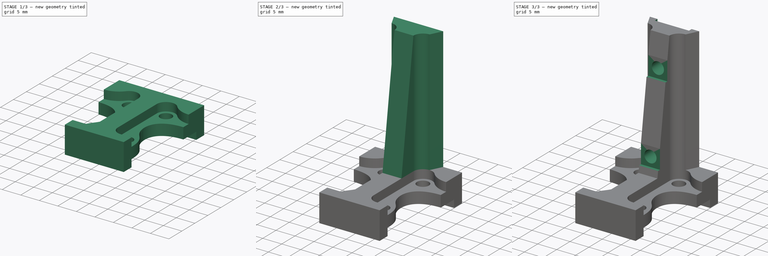
[diagram: build sequence overview — one tinted view per stage of 3, left to right]
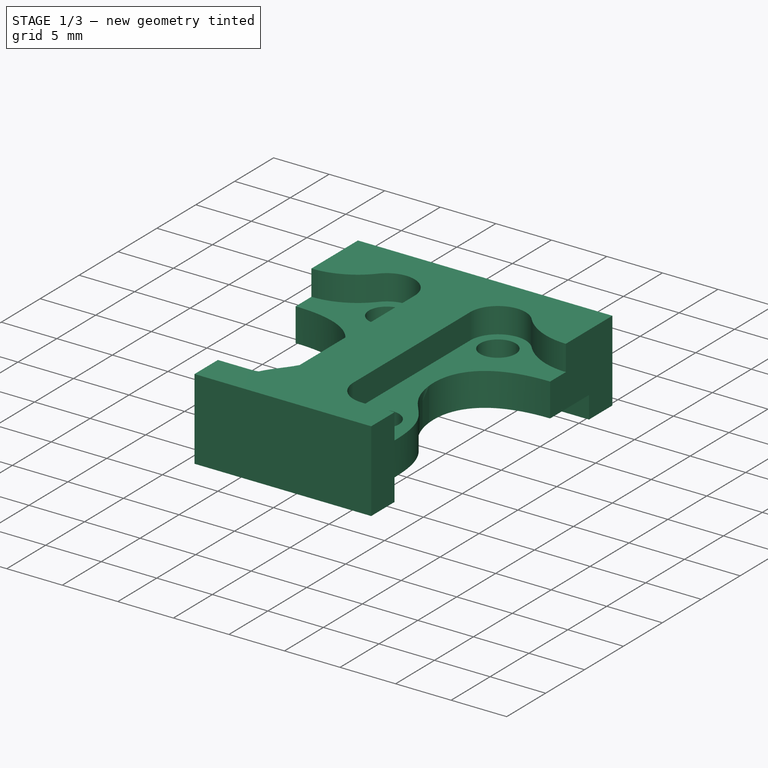
[diagram: stage 1 of 3 — iso view after this stage's code; geometry added in this stage tinted green]
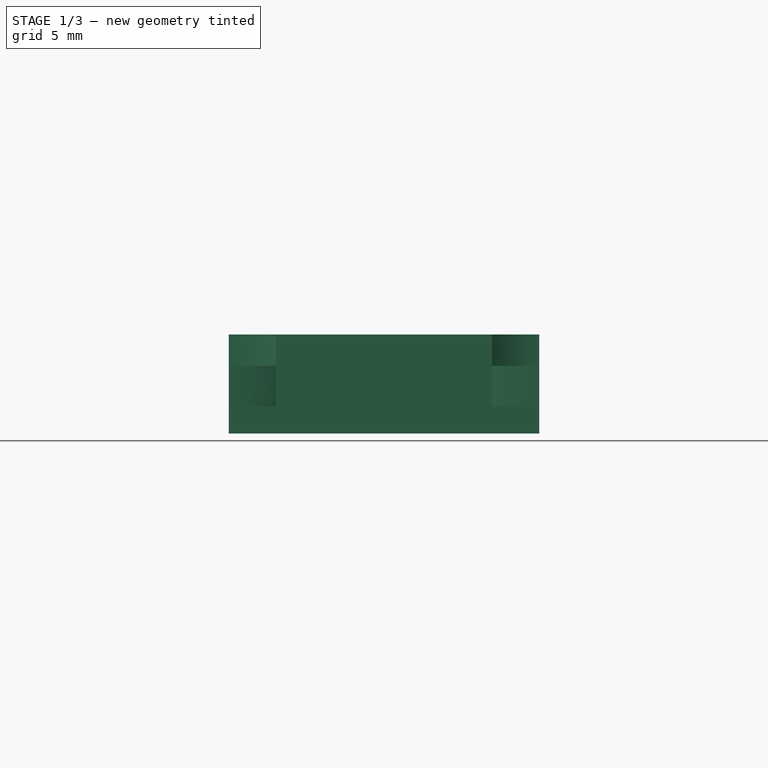
[diagram: stage 1 of 3 — front view after this stage's code; geometry added in this stage tinted green]
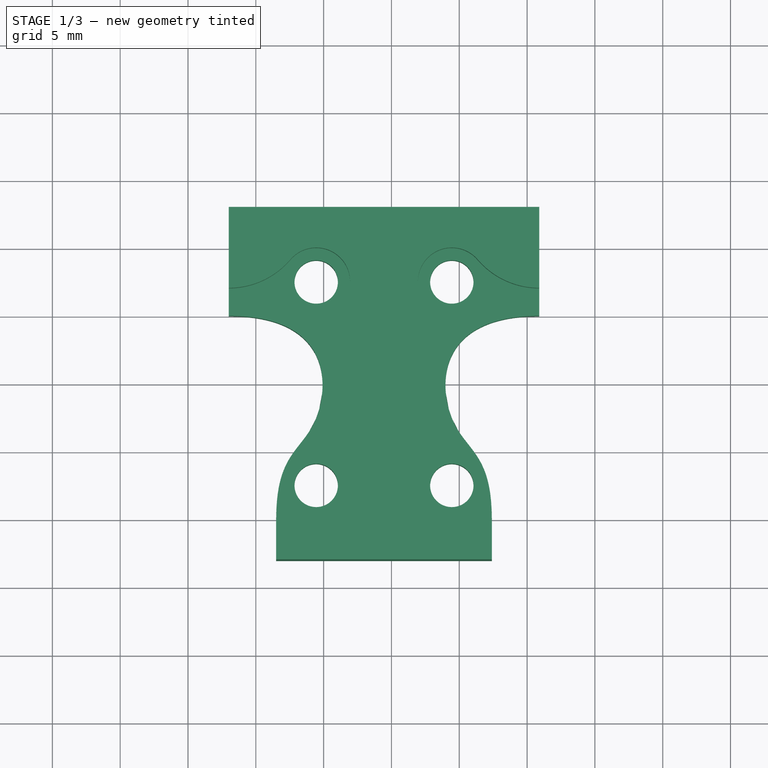
[diagram: stage 1 of 3 — top view after this stage's code; geometry added in this stage tinted green]
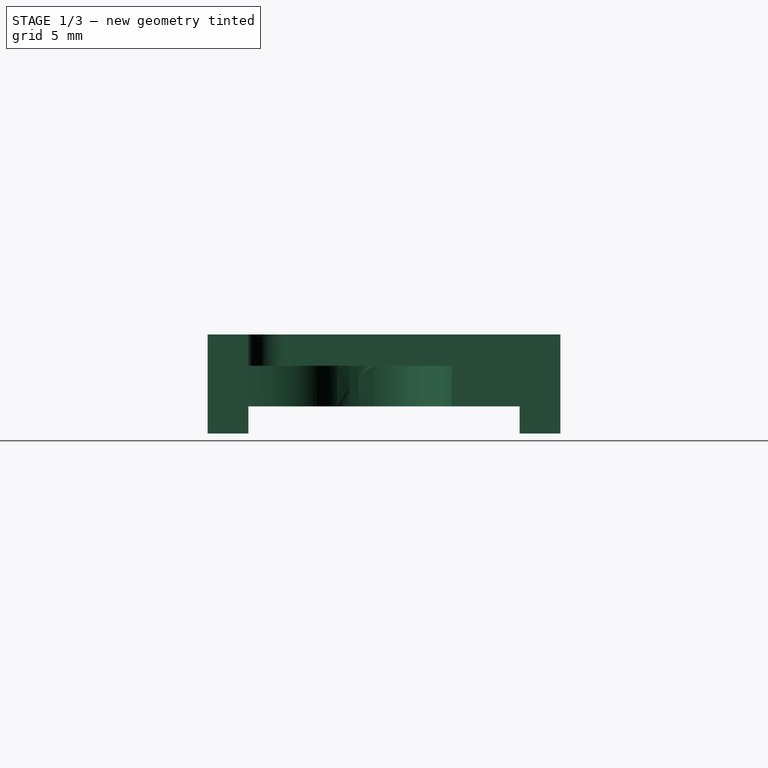
[diagram: stage 1 of 3 — right view after this stage's code; geometry added in this stage tinted green]
FCSTD DOCUMENT  (FreeCAD 0.21R33668 +26 (Git))
Label: XZ_Connector
License: All rights reserved
LicenseURL: http://en.wikipedia.org/wiki/All_rights_reserved
objects: Sketcher::SketchObject×8, PartDesign::Pocket×5, PartDesign::SubShapeBinder×3, PartDesign::Pad×3, PartDesign::ShapeBinder×1, PartDesign::Body×1
note: 29 computed .brp shape members not serialized (recipe doc carries the construction recipe); baked Part::Feature solids carry a one-line shape summary decoded from their .brp
EXTERNAL_REF file=MG/mgn9c_slide.FCStd obj=Body001
EXTERNAL_REF file=MG/Datasheet.FCStd obj=Spreadsheet
EXTERNAL_REF file=MG/mgn9c_13.FCStd obj=Body
EXTERNAL_REF file=OmniballConnector/OmniballConnector_7945.FCStd obj=Body

FEATURE [PartDesign::SubShapeBinder] Binder  label="Slide"
  BindCopyOnChange = 0
  BindMode = 0
  ClaimChildren = false
  Fuse = false
  MakeFace = true
  OffsetFill = false
  OffsetIntersection = false
  OffsetJoinType = 0
  OffsetOpenResult = false
  PartialLoad = false
  Relative = true
  Support = -> [<external MG/mgn9c_slide.FCStd>#Body001]
  _Version = 2
FEATURE [PartDesign::ShapeBinder] ReferenceBinder
  Support = -> [Binder]
  TraceSupport = false
FEATURE [Sketcher::SketchObject] Sketch
  ExternalGeometry = -> [ReferenceBinder]
  FullyConstrained = true
  MapMode = 5
  Placement = pos=(0,0,8) rot=(0,0,1;0rad)
  Support = -> [ReferenceBinder]
  expr: .Constraints.ScrewRAd = 3.2
  expr: Constraints[23] = .Constraints.ScrewRAd
  expr: Constraints[49] = .Constraints.Overhang
  expr: Constraints[79] = .Constraints.ScrewRAd
  expr: Constraints[80] = .Constraints.ScrewRAd
  sketch-geometry (37):
    g0: LineSegment StartX=3 StartY=23 StartZ=0 EndX=25.9 EndY=23 EndZ=0
    g1: LineSegment StartX=25.9 StartY=23 StartZ=0 EndX=25.9 EndY=15 EndZ=0
    g2: LineSegment StartX=25.9 StartY=15 StartZ=0 EndX=3 EndY=15 EndZ=0
    g3: LineSegment StartX=3 StartY=15 StartZ=0 EndX=3 EndY=23 EndZ=0
    g4: GeomPoint X=14.45 Y=15 Z=0
    g5: GeomPoint X=5 Y=15 Z=0
    g6: GeomPoint X=23.9 Y=15 Z=0
    g7: GeomPoint X=9.45 Y=20 Z=0
    g8: GeomPoint X=9.45 Y=15 Z=0
    g9: LineSegment StartX=9.45 StartY=20 StartZ=0 EndX=9.45 EndY=15 EndZ=0
    g10: Circle CenterX=9.45 CenterY=17.5 CenterZ=0 NormalX=0 NormalY=0 NormalZ=1 AngleXU=0 Radius=1.6
    g11: Circle CenterX=19.45 CenterY=17.5 CenterZ=0 NormalX=0 NormalY=0 NormalZ=1 AngleXU=0 Radius=1.6
    g12-g16: Circle x5 (B-spline internal-alignment scaffolding for g17; pole/knot coordinates omitted)
    g17: BSplineCurve PolesCount=5 KnotsCount=3 Degree=3 IsPeriodic=0
    g18: GeomPoint X=3 Y=15 Z=0
    g19: GeomPoint X=9.4625 Y=7.5 Z=0
    g20: GeomPoint X=6.5 Y=0 Z=0
    g21: LineSegment StartX=22.4 StartY=0 StartZ=0 EndX=22.4 EndY=-3 EndZ=0
    g22: LineSegment StartX=22.4 StartY=-3 StartZ=0 EndX=6.5 EndY=-3 EndZ=0
    g23: LineSegment StartX=6.5 StartY=-3 StartZ=0 EndX=6.5 EndY=0 EndZ=0
    g24: GeomPoint X=14.45 Y=0 Z=0
    g25-g29: Circle x5 (B-spline internal-alignment scaffolding for g30; pole/knot coordinates omitted)
    g30: BSplineCurve PolesCount=5 KnotsCount=3 Degree=3 IsPeriodic=0
    g31: GeomPoint X=25.9 Y=15 Z=0
    g32: GeomPoint X=19.4375 Y=7.5 Z=0
    g33: GeomPoint X=22.4 Y=0 Z=0
    g34: LineSegment StartX=14.45 StartY=15 StartZ=0 EndX=14.45 EndY=0 EndZ=0
    g35: Circle CenterX=19.45 CenterY=2.5 CenterZ=0 NormalX=0 NormalY=0 NormalZ=1 AngleXU=0 Radius=1.6
    g36: Circle CenterX=9.45 CenterY=2.5 CenterZ=0 NormalX=0 NormalY=0 NormalZ=1 AngleXU=0 Radius=1.6
  constraints (67):
    c: Coincident(g0,g1)
    c: Coincident(g1,g2)
    c: Coincident(g2,g3)
    c: Coincident(g3,g0)
    c: Horizontal(g0)
    c: Horizontal(g2)
    c: Vertical(g1)
    c: Vertical(g3)
    c: DistanceX(g2,g-8) = 2
    c: Symmetric(g1,g2,g4)
    c: PointOnObject(g5,g-8)
    c: PointOnObject(g5,g2)
    c: PointOnObject(g6,g-9)
    c: Symmetric(g6,g5,g4)
    c: DistanceY(g-8,g0) = 3
    c: PointOnObject(g7,g-7)
    c: PointOnObject(g8,g2)
    c: Coincident(g9,g7)
    c: Coincident(g9,g8)
    c: Vertical(g9)
    c: Symmetric(g8,g7,g-3)
    c: Coincident(g10,g-3)
    c: Coincident(g11,g-4)
    c: Diameter(g11) = 3.2
    c: Diameter(g10) = 3.2  'ScrewRAd'
    c: Weight(g12) = 1
    c: Coincident(g17,g2)
    c: Equal(g12, g13-g16) x4
    c: PointOnObject(g17,g-1)
    c: InternalAlignment(g12-g16 -> g17) x5
    c: InternalAlignment(g18,g17)
    c: InternalAlignment(g19,g17)
    c: InternalAlignment(g20,g17)
    c: DistanceX(g15,g17) = 0
    c: PointOnObject(g13,g2)
    c: DistanceY(g14,g15) = 0
    c: Coincident(g21,g22)
    c: Coincident(g22,g23)
    c: Horizontal(g22)
    c: Vertical(g21)
    c: Vertical(g23)
    c: DistanceY(g-9,g0) = 3  'Overhang'
    c: DistanceY(g21,g21) = 3
    c: DistanceX(g13,g4) = 4
    c: DistanceX(g13,g14) = 0
    c: DistanceY(g17,g15) = 5
    c: Coincident(g16,g23)
    c: Symmetric(g-8,g-9,g24)
    c: Weight(g25) = 1
    c: Coincident(g30,g1)
    c: Equal(g25, g26-g29) x4
    c: Coincident(g30,g21)
    c: InternalAlignment(g25-g29 -> g30) x5
    c: InternalAlignment(g31,g30)
    c: InternalAlignment(g32,g30)
    c: InternalAlignment(g33,g30)
    c: Coincident(g34,g4)
    c: Coincident(g34,g24)
    c: Symmetric(g13,g26,g34)
    c: Symmetric(g14,g27,g34)
    c: Symmetric(g15,g28,g34)
    c: Symmetric(g21,g17,g34)
    c: DistanceX(g21,g-9) = 1.5
    c: Coincident(g35,g-5)
    c: Coincident(g36,g-6)
    c: Diameter(g36) = 3.2
    c: Diameter(g35) = 3.2
FEATURE [PartDesign::Pad] Pad
  Direction = (0,0,1)
  Length = 5.3
  Length2 = 10
  Profile = -> Sketch
  ReferenceAxis = -> Sketch [N_Axis]
  Type = 0
FEATURE [Sketcher::SketchObject] Sketch001
  ExternalGeometry = -> [Pad,ReferenceBinder]
  FullyConstrained = true
  MapMode = 5
  Placement = pos=(0,0,8) rot=(0,0,1;0rad)
  Support = -> [ReferenceBinder]
  sketch-geometry (8):
    g0: LineSegment StartX=3 StartY=23 StartZ=0 EndX=25.9 EndY=23 EndZ=0
    g1: LineSegment StartX=25.9 StartY=23 StartZ=0 EndX=25.9 EndY=20 EndZ=0
    g2: LineSegment StartX=25.9 StartY=20 StartZ=0 EndX=3 EndY=20 EndZ=0
    g3: LineSegment StartX=3 StartY=20 StartZ=0 EndX=3 EndY=23 EndZ=0
    g4: LineSegment StartX=22.4 StartY=0 StartZ=0 EndX=6.5 EndY=0 EndZ=0
    g5: LineSegment StartX=6.5 StartY=0 StartZ=0 EndX=6.5 EndY=-3 EndZ=0
    g6: LineSegment StartX=6.5 StartY=-3 StartZ=0 EndX=22.4 EndY=-3 EndZ=0
    g7: LineSegment StartX=22.4 StartY=-3 StartZ=0 EndX=22.4 EndY=0 EndZ=0
  constraints (20):
    c: Coincident(g0,g1)
    c: Coincident(g1,g2)
    c: Coincident(g2,g3)
    c: Coincident(g3,g0)
    c: Horizontal(g2)
    c: Vertical(g1)
    c: Vertical(g3)
    c: PointOnObject(g-4,g2)
    c: Coincident(g0,g-3)
    c: Coincident(g0,g-3)
    c: Coincident(g4,g5)
    c: Coincident(g5,g6)
    c: Coincident(g6,g7)
    c: Coincident(g7,g4)
    c: Horizontal(g4)
    c: Horizontal(g6)
    c: Vertical(g5)
    c: Vertical(g7)
    c: Coincident(g4,g-6)
    c: Coincident(g5,g-5)
FEATURE [PartDesign::Pad] Pad001
  BaseFeature = -> Pad
  Direction = (0,0,1)
  Length = 2
  Length2 = 10
  Profile = -> Sketch001
  ReferenceAxis = -> Sketch001 [N_Axis]
  Reversed = true
  Type = 0
  expr: Length = 2
FEATURE [Sketcher::SketchObject] Sketch002
  ExternalGeometry = -> [Pad001]
  FullyConstrained = true
  MapMode = 5
  Placement = pos=(0,0,13.3) rot=(0,0,1;0rad)
  Support = -> [Pad001]
  sketch-geometry (19):
    g0: Circle CenterX=19.45 CenterY=17.5 CenterZ=0 NormalX=0 NormalY=0 NormalZ=1 AngleXU=0 Radius=2.5
    g1: Circle CenterX=9.45 CenterY=17.5 CenterZ=0 NormalX=0 NormalY=0 NormalZ=1 AngleXU=0 Radius=2.5
    g2: Circle CenterX=9.45 CenterY=2.5 CenterZ=0 NormalX=0 NormalY=0 NormalZ=1 AngleXU=0 Radius=2.5
    g3: Circle CenterX=19.45 CenterY=2.5 CenterZ=0 NormalX=0 NormalY=0 NormalZ=1 AngleXU=0 Radius=2.5
    g4: ArcOfCircle CenterX=9.45 CenterY=2.5 CenterZ=0 NormalX=0 NormalY=0 NormalZ=1 AngleXU=0 Radius=2.5 StartAngle=4.71239 EndAngle=6.28318
    g5: ArcOfCircle CenterX=19.45 CenterY=2.5 CenterZ=0 NormalX=0 NormalY=0 NormalZ=1 AngleXU=0 Radius=2.5 StartAngle=3.1416 EndAngle=4.71238
    g6: ArcOfCircle CenterX=19.45 CenterY=17.5 CenterZ=0 NormalX=0 NormalY=0 NormalZ=1 AngleXU=0 Radius=2.5 StartAngle=0.706067 EndAngle=3.14159
    g7: ArcOfCircle CenterX=9.45 CenterY=17.5 CenterZ=0 NormalX=0 NormalY=0 NormalZ=1 AngleXU=0 Radius=2.5 StartAngle=6.28319 EndAngle=8.71871
    g8: LineSegment StartX=14.45 StartY=23 StartZ=0 EndX=14.45 EndY=0 EndZ=0
    g9: LineSegment StartX=11.95 StartY=17.5 StartZ=0 EndX=11.95 EndY=2.49999 EndZ=0
    g10: LineSegment StartX=16.95 StartY=17.5 StartZ=0 EndX=16.95 EndY=2.49999 EndZ=0
    g11: ArcOfCircle CenterX=25.9 CenterY=23 CenterZ=0 NormalX=0 NormalY=0 NormalZ=1 AngleXU=0 Radius=5.97659 StartAngle=3.84766 EndAngle=4.71239
    g12: ArcOfCircle CenterX=3 CenterY=23 CenterZ=0 NormalX=0 NormalY=0 NormalZ=1 AngleXU=0 Radius=5.97659 StartAngle=4.71239 EndAngle=5.57712
    g13: LineSegment StartX=9.45 StartY=5.51e-14 StartZ=0 EndX=6.5 EndY=5.51e-14 EndZ=0
    g14: LineSegment StartX=19.45 StartY=2.91389e-11 StartZ=0 EndX=22.4 EndY=2.91389e-11 EndZ=0
    g15: LineSegment StartX=22.4 StartY=2.91389e-11 StartZ=0 EndX=25.9 EndY=15 EndZ=0
    g16: LineSegment StartX=25.9 StartY=15 StartZ=0 EndX=25.9 EndY=17.0234 EndZ=0
    g17: LineSegment StartX=3 StartY=17.0234 StartZ=0 EndX=3 EndY=15 EndZ=0
    g18: LineSegment StartX=3 StartY=15 StartZ=0 EndX=6.5 EndY=5.51e-14 EndZ=0
  constraints (47):
    c: Coincident(g0,g-3)
    c: Coincident(g1,g-4)
    c: Coincident(g2,g-5)
    c: Coincident(g3,g-6)
    c: Coincident(g4,g2)
    c: PointOnObject(g4,g2)
    c: Coincident(g5,g3)
    c: Coincident(g6,g0)
    c: Coincident(g7,g1)
    c: PointOnObject(g8,g-1)
    c: Symmetric(g-7,g-7,g8)
    c: Symmetric(g7,g6,g8)
    c: Symmetric(g7,g6,g8)
    c: Symmetric(g5,g4,g8)
    c: Coincident(g9,g7)
    c: Coincident(g9,g4)
    c: Coincident(g10,g6)
    c: Coincident(g10,g5)
    c: PointOnObject(g11,g-8)
    c: Coincident(g11,g6)
    c: Tangent(g11,g0)
    c: Coincident(g12,g7)
    c: Symmetric(g12,g11,g8)
    c: PointOnObject(g6,g0)
    c: Coincident(g11,g-8)
    c: Tangent(g10,g0)
    c: Tangent(g3,g10)
    c: Coincident(g13,g4)
    c: Horizontal(g13)
    c: Coincident(g14,g5)
    c: Horizontal(g14)
    c: Tangent(g14,g3)
    c: Symmetric(g13,g14,g8)
    c: PointOnObject(g14,g-9)
    c: Coincident(g15,g14)
    c: Coincident(g15,g-8)
    c: Coincident(g16,g15)
    c: Coincident(g16,g11)
    c: Coincident(g17,g12)
    c: Coincident(g18,g17)
    c: Coincident(g18,g13)
    c: Symmetric(g17,g15,g8)
    c: Tangent(g12,g1)
    c: Vertical(g10)
    c: Diameter(g0) = 5  'ScrewHead'
    c: Tangent(g13,g2)
    c: Perpendicular(g12,g17)
FEATURE [PartDesign::Pocket] Pocket
  BaseFeature = -> Pad001
  Direction = (0,0,-1)
  Length = 2.3
  Length2 = 5
  Profile = -> Sketch002
  ReferenceAxis = -> Sketch002 [N_Axis]
  Type = 0
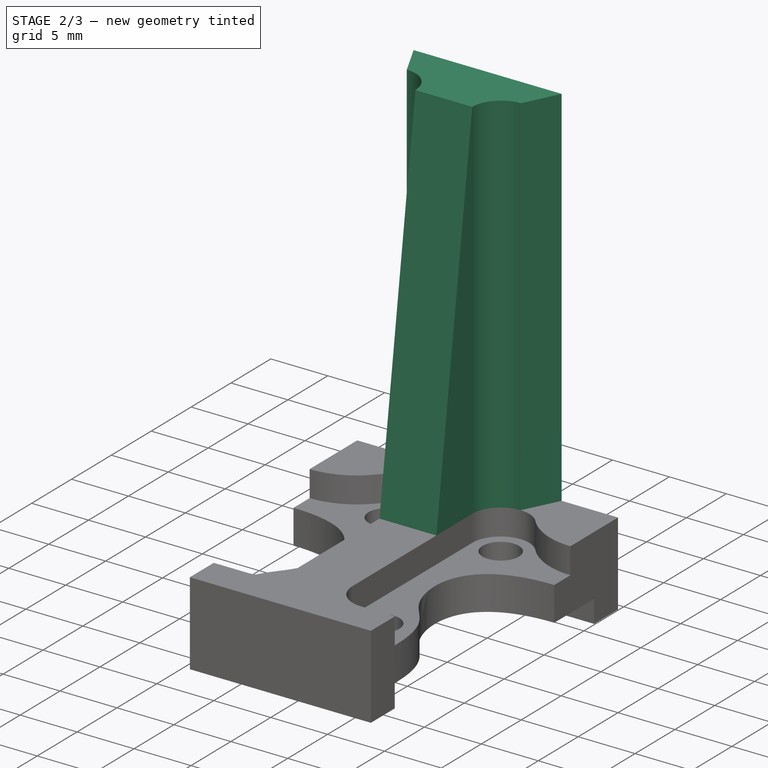
[diagram: stage 2 of 3 — iso view after this stage's code; geometry added in this stage tinted green]
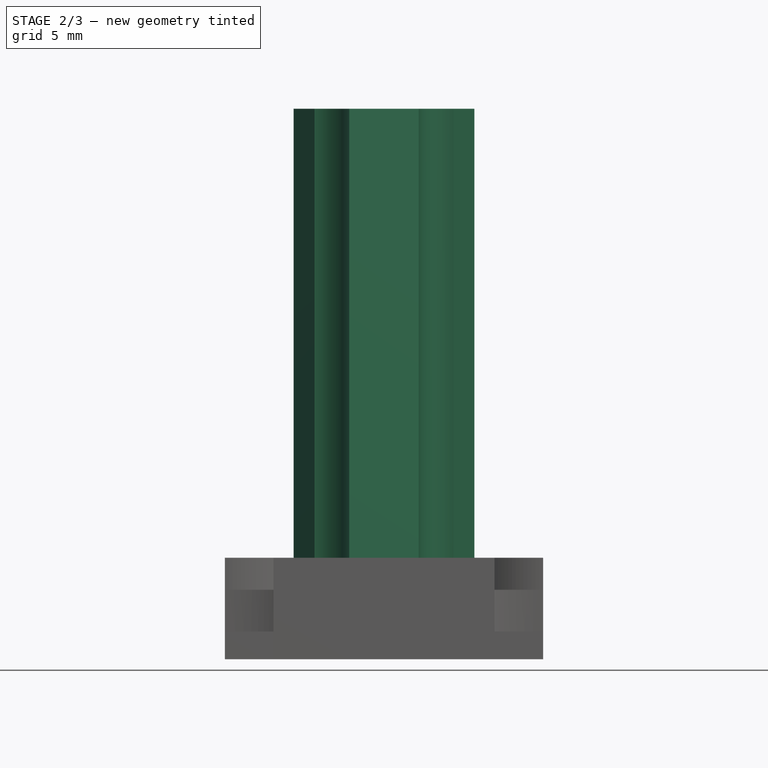
[diagram: stage 2 of 3 — front view after this stage's code; geometry added in this stage tinted green]
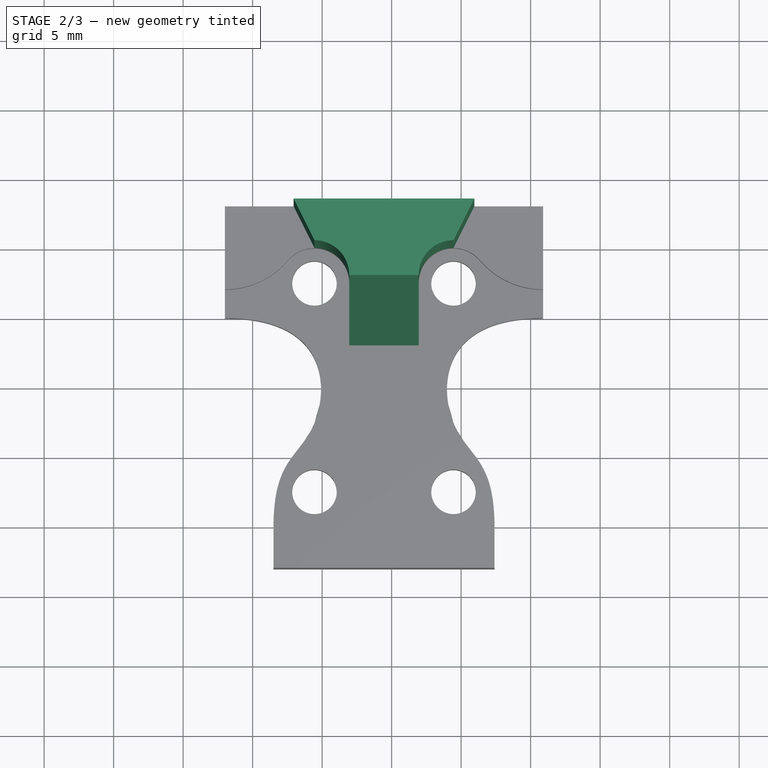
[diagram: stage 2 of 3 — top view after this stage's code; geometry added in this stage tinted green]
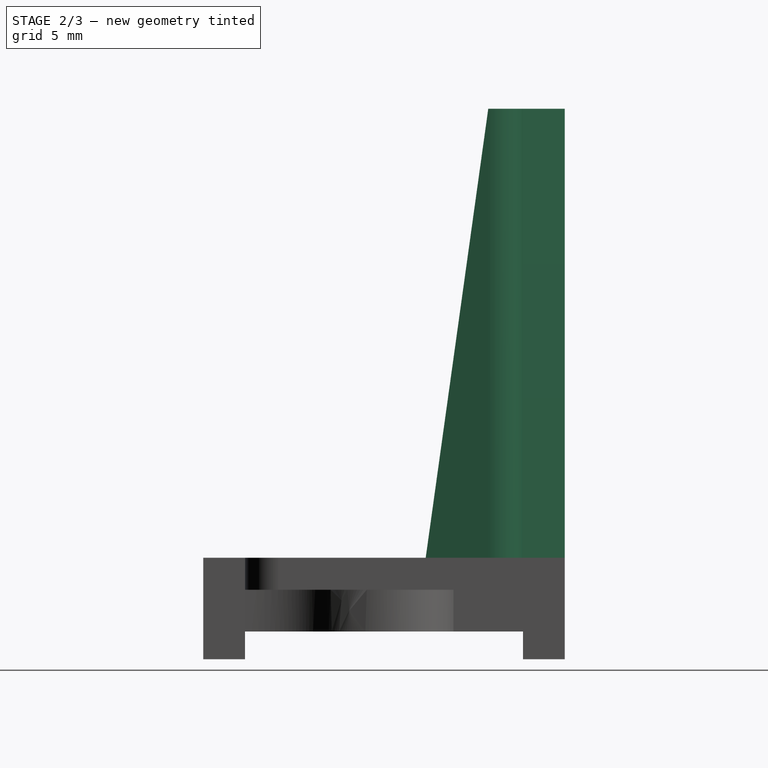
[diagram: stage 2 of 3 — right view after this stage's code; geometry added in this stage tinted green]
FEATURE [Sketcher::SketchObject] Sketch005
  ExternalGeometry = -> [Pocket]
  FullyConstrained = true
  MapMode = 5
  Placement = pos=(0,0,13.3) rot=(0,0,1;0rad)
  Support = -> [Pocket]
  expr: Constraints[22] = <<Datasheet>>#<<mgn9c>>.Dim_Wr + 4
  sketch-geometry (11):
    g0: LineSegment StartX=7.95 StartY=23 StartZ=0 EndX=20.95 EndY=23 EndZ=0
    g1: LineSegment StartX=20.95 StartY=23 StartZ=0 EndX=19.45 EndY=20 EndZ=0
    g2: LineSegment StartX=19.45 StartY=20 StartZ=0 EndX=9.45 EndY=20 EndZ=0
    g3: LineSegment StartX=9.45 StartY=20 StartZ=0 EndX=7.95 EndY=23 EndZ=0
    g4: ArcOfCircle CenterX=9.45 CenterY=17.5 CenterZ=0 NormalX=0 NormalY=0 NormalZ=1 AngleXU=0 Radius=2.5 StartAngle=6.28319 EndAngle=7.85398
    g5: ArcOfCircle CenterX=19.45 CenterY=17.5 CenterZ=0 NormalX=0 NormalY=0 NormalZ=1 AngleXU=0 Radius=2.5 StartAngle=1.5708 EndAngle=3.14159
    g6: LineSegment StartX=11.95 StartY=17.5 StartZ=0 EndX=16.95 EndY=17.5 EndZ=0
    g7: LineSegment StartX=16.95 StartY=17.5 StartZ=0 EndX=16.95 EndY=13 EndZ=0
    g8: LineSegment StartX=16.95 StartY=13 StartZ=0 EndX=11.95 EndY=13 EndZ=0
    g9: LineSegment StartX=11.95 StartY=13 StartZ=0 EndX=11.95 EndY=17.5 EndZ=0
    g10: GeomPoint X=14.45 Y=23 Z=0
  constraints (27):
    c: Coincident(g0,g1)
    c: Coincident(g1,g2)
    c: Coincident(g3,g0)
    c: Horizontal(g0)
    c: Coincident(g5,g-5)
    c: Coincident(g5,g1)
    c: DistanceX(g-4,g-5) = 5
    c: Coincident(g5,g-5)
    c: Coincident(g4,g-4)
    c: Coincident(g4,g-4)
    c: Coincident(g2,g3)
    c: Coincident(g2,g4)
    c: Coincident(g6,g7)
    c: Coincident(g7,g8)
    c: Coincident(g8,g9)
    c: Coincident(g9,g6)
    c: Horizontal(g8)
    c: Vertical(g7)
    c: Vertical(g9)
    c: Coincident(g6,g4)
    c: Coincident(g5,g6)
    c: DistanceY(g7,g0) = 10
    c: DistanceX(g0,g0) = 13
    c: Horizontal(g2)
    c: Tangent(g5,g2)
    c: Symmetric(g-3,g-3,g10)
    c: Symmetric(g0,g0,g10)
FEATURE [PartDesign::Pad] Pad002
  BaseFeature = -> Pocket
  Direction = (0,0,1)
  Length = 32.3
  Length2 = 10
  Profile = -> Sketch005
  ReferenceAxis = -> Sketch005 [N_Axis]
  Type = 0
  expr: Length = <<Datasheet>>#<<mgn9c>>.Dim_E * 2 + <<Datasheet>>#<<mgn9c>>.Dim_P - (<<Datasheet>>#<<mgn9c>>.Dim_H - <<Datasheet>>#<<mgn9c>>.Dim_H1 - 5.3)
FEATURE [Sketcher::SketchObject] Sketch006
  ExternalGeometry = -> [Pad002]
  FullyConstrained = true
  MapMode = 5
  Placement = pos=(16.95,0,0) rot=(0.57735,0.57735,0.57735;2.0944rad)
  Support = -> [Pad002]
  sketch-geometry (3):
    g0: LineSegment StartX=17.5 StartY=45.6 StartZ=0 EndX=13 EndY=13.3 EndZ=0
    g1: LineSegment StartX=13 StartY=13.3 StartZ=0 EndX=13 EndY=45.6 EndZ=0
    g2: LineSegment StartX=13 StartY=45.6 StartZ=0 EndX=17.5 EndY=45.6 EndZ=0
  constraints (6):
    c: Coincident(g0,g-3)
    c: Coincident(g0,g-4)
    c: Coincident(g1,g0)
    c: Coincident(g1,g-4)
    c: Coincident(g2,g1)
    c: Coincident(g2,g0)
FEATURE [PartDesign::Pocket] Pocket001
  BaseFeature = -> Pad002
  Direction = (-1,0,0)
  Length = 10
  Length2 = 5
  Profile = -> Sketch006
  ReferenceAxis = -> Sketch006 [N_Axis]
  Type = 0
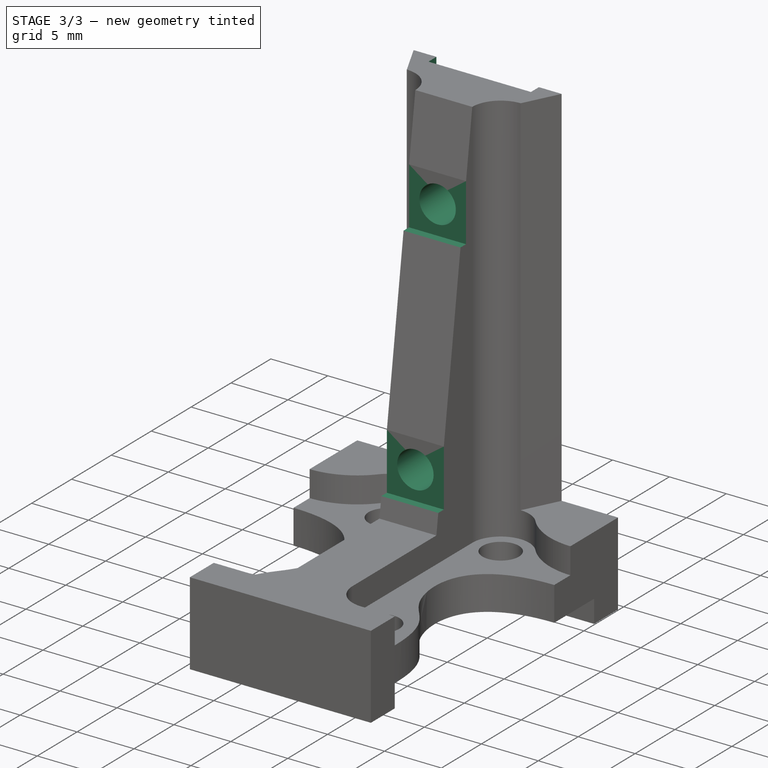
[diagram: stage 3 of 3 — iso view after this stage's code; geometry added in this stage tinted green]
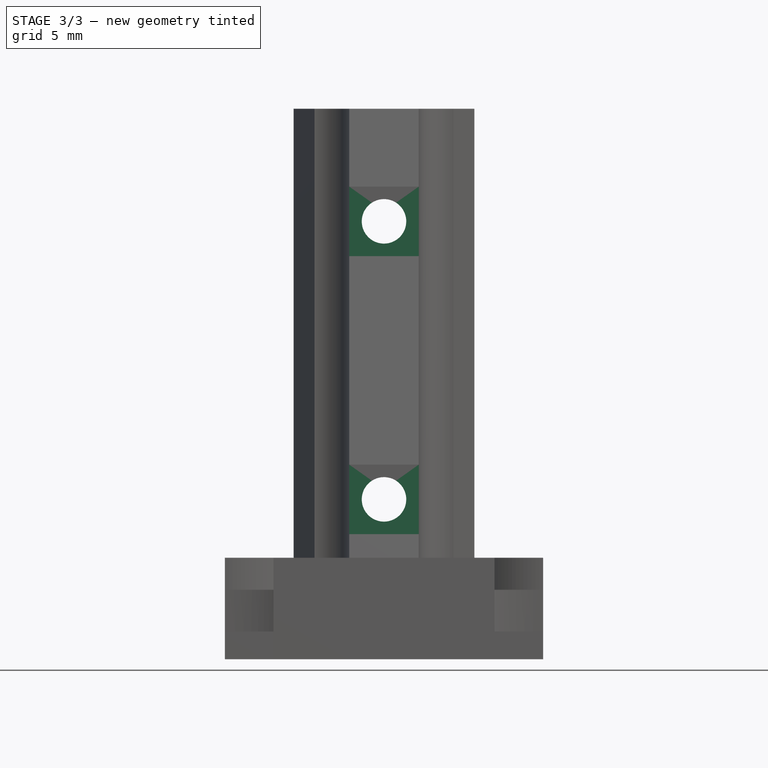
[diagram: stage 3 of 3 — front view after this stage's code; geometry added in this stage tinted green]
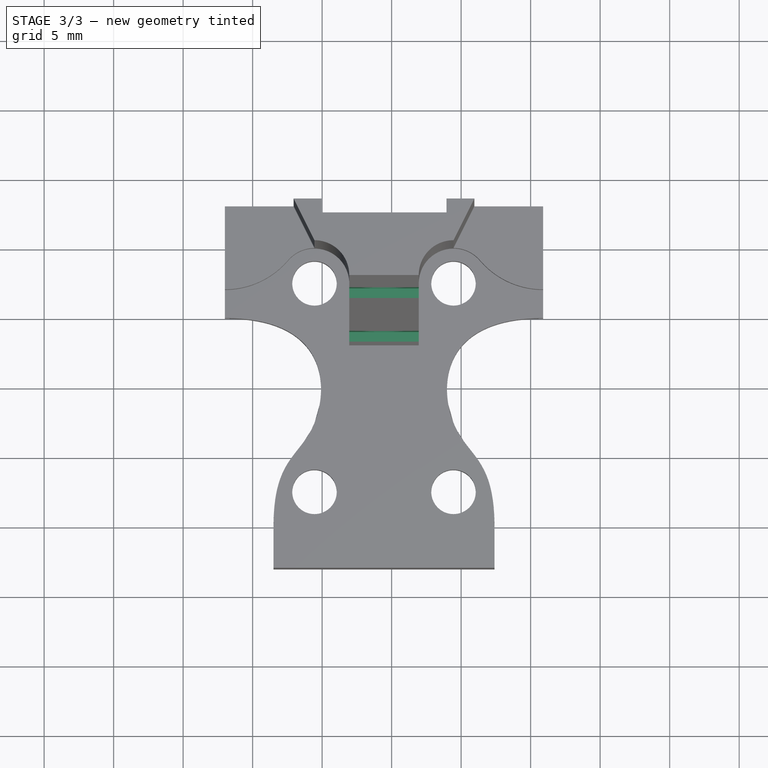
[diagram: stage 3 of 3 — top view after this stage's code; geometry added in this stage tinted green]
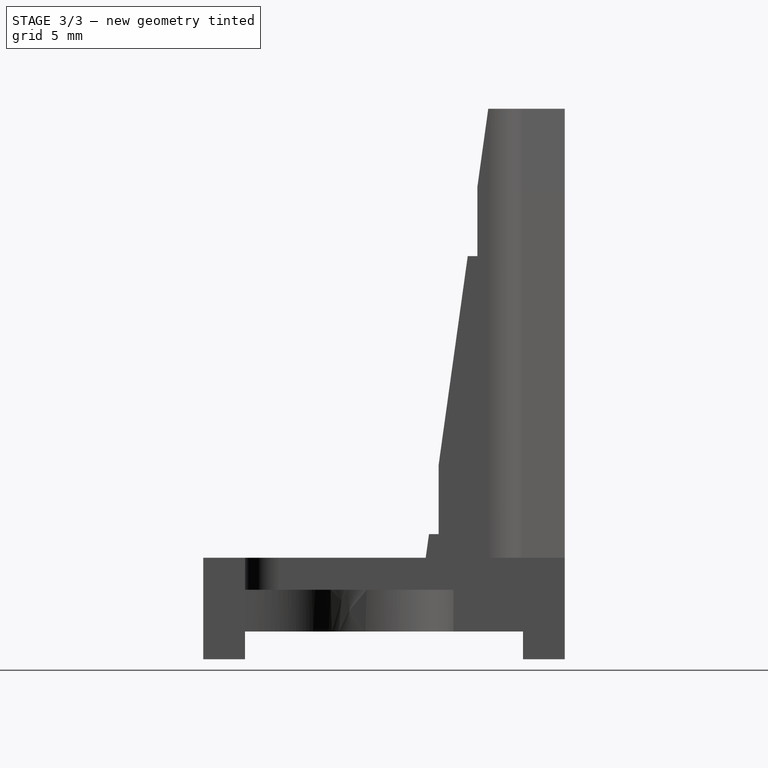
[diagram: stage 3 of 3 — right view after this stage's code; geometry added in this stage tinted green]
FEATURE [Sketcher::SketchObject] Sketch007
  ExternalGeometry = -> [Pocket001]
  FullyConstrained = true
  MapMode = 5
  Placement = pos=(0,23,0) rot=(0,0.707107,0.707107;3.14159rad)
  Support = -> [Pocket001]
  expr: Constraints[9] = <<Datasheet>>#<<mgn9c>>.Dim_Wr
  sketch-geometry (5):
    g0: LineSegment StartX=-18.95 StartY=45.6 StartZ=0 EndX=-9.95 EndY=45.6 EndZ=0
    g1: LineSegment StartX=-9.95 StartY=45.6 StartZ=0 EndX=-9.95 EndY=6 EndZ=0
    g2: LineSegment StartX=-9.95 StartY=6 StartZ=0 EndX=-18.95 EndY=6 EndZ=0
    g3: LineSegment StartX=-18.95 StartY=6 StartZ=0 EndX=-18.95 EndY=45.6 EndZ=0
    g4: GeomPoint X=-14.45 Y=45.6 Z=0
  constraints (12):
    c: Coincident(g0,g1)
    c: Coincident(g1,g2)
    c: Coincident(g2,g3)
    c: Coincident(g3,g0)
    c: Horizontal(g0)
    c: Horizontal(g2)
    c: Vertical(g1)
    c: Vertical(g3)
    c: PointOnObject(g1,g-4)
    c: DistanceX(g2,g2) = 9
    c: Symmetric(g-3,g-3,g4)
    c: Symmetric(g0,g0,g4)
FEATURE [PartDesign::Pocket] Pocket002
  BaseFeature = -> Pocket001
  Direction = (0,-1,2e-16)
  Length = 1
  Length2 = 5
  Profile = -> Sketch007
  ReferenceAxis = -> Sketch007 [N_Axis]
  Type = 0
  expr: Length = <<Datasheet>>#<<mgn9c>>.Dim_H1 / 2
FEATURE [Sketcher::SketchObject] Sketch008
  ExternalGeometry = -> [Pocket002]
  FullyConstrained = true
  MapMode = 5
  Placement = pos=(0,22,-5.9e-15) rot=(0,0.707107,0.707107;3.14159rad)
  Support = -> [Pocket002]
  expr: .Constraints.ScrewRad = 3.2
  expr: Constraints[6] = .Constraints.ScrewRad
  expr: Constraints[7] = <<Datasheet>>#<<mgn9c>>.Dim_P
  expr: Constraints[8] = <<Datasheet>>#<<mgn9c>>.Dim_E + 2
  sketch-geometry (3):
    g0: Circle CenterX=-14.45 CenterY=37.5 CenterZ=0 NormalX=0 NormalY=0 NormalZ=1 AngleXU=0 Radius=1.6
    g1: Circle CenterX=-14.45 CenterY=17.5 CenterZ=0 NormalX=0 NormalY=0 NormalZ=1 AngleXU=0 Radius=1.6
    g2: LineSegment StartX=-14.45 StartY=45.6 StartZ=0 EndX=-14.45 EndY=6 EndZ=0
  constraints (9):
    c: PointOnObject(g2,g-3)
    c: Vertical(g2)
    c: Symmetric(g-4,g-4,g2)
    c: PointOnObject(g1,g2)
    c: PointOnObject(g0,g2)
    c: Diameter(g0) = 3.2  'ScrewRad'
    c: Diameter(g1) = 3.2
    c: DistanceY(g1,g0) = 20
    c: DistanceY(g-5,g1) = 9.5
FEATURE [PartDesign::Pocket] Pocket003
  BaseFeature = -> Pocket002
  Direction = (0,-1,2e-16)
  Length = 10
  Length2 = 5
  Profile = -> Sketch008
  ReferenceAxis = -> Sketch008 [N_Axis]
  Type = 0
FEATURE [Sketcher::SketchObject] Sketch009
  ExternalGeometry = -> [Pocket003]
  FullyConstrained = true
  MapMode = 5
  Placement = pos=(16.95,0,0) rot=(0.57735,0.57735,0.57735;2.0944rad)
  Support = -> [Pocket003]
  expr: Constraints[12] = <<Sketch002>>.Constraints.ScrewHead
  expr: Constraints[27] = <<Sketch002>>.Constraints.ScrewHead
  sketch-geometry (11):
    g0: LineSegment StartX=22 StartY=37.5 StartZ=0 EndX=16.3715 EndY=37.5 EndZ=0
    g1: LineSegment StartX=16.0232 StartY=40 StartZ=0 EndX=16.7198 EndY=40 EndZ=0
    g2: LineSegment StartX=16.7198 StartY=40 StartZ=0 EndX=16.7198 EndY=35 EndZ=0
    g3: LineSegment StartX=16.7198 StartY=35 StartZ=0 EndX=16.0232 EndY=35 EndZ=0
    g4: LineSegment StartX=16.0232 StartY=35 StartZ=0 EndX=16.0232 EndY=40 EndZ=0
    g5: LineSegment StartX=13.2368 StartY=15 StartZ=0 EndX=13.9334 EndY=15 EndZ=0
    g6: LineSegment StartX=13.9334 StartY=15 StartZ=0 EndX=13.9334 EndY=20 EndZ=0
    g7: LineSegment StartX=13.9334 StartY=20 StartZ=0 EndX=13.2368 EndY=20 EndZ=0
    g8: LineSegment StartX=13.2368 StartY=20 StartZ=0 EndX=13.2368 EndY=15 EndZ=0
    g9: GeomPoint X=22 Y=17.5 Z=0
    g10: LineSegment StartX=22 StartY=17.5 StartZ=0 EndX=13.5851 EndY=17.5 EndZ=0
  constraints (29):
    c: PointOnObject(g0,g-3)
    c: Horizontal(g0)
    c: Symmetric(g-4,g-4,g0)
    c: Coincident(g1,g2)
    c: Coincident(g2,g3)
    c: Coincident(g3,g4)
    c: Coincident(g4,g1)
    c: Horizontal(g1)
    c: Horizontal(g3)
    c: Vertical(g4)
    c: Symmetric(g1,g2,g0)
    c: PointOnObject(g3,g-3)
    c: DistanceY(g2,g2) = 5
    c: PointOnObject(g1,g-3)
    c: Coincident(g5,g6)
    c: Coincident(g6,g7)
    c: Coincident(g7,g8)
    c: Coincident(g8,g5)
    c: Horizontal(g5)
    c: Horizontal(g7)
    c: Vertical(g6)
    c: Vertical(g8)
    c: PointOnObject(g5,g-3)
    c: PointOnObject(g6,g-3)
    c: Symmetric(g-5,g-5,g9)
    c: Coincident(g10,g9)
    c: Symmetric(g6,g5,g10)
    c: DistanceY(g6,g6) = 5
    c: PointOnObject(g10,g-3)
FEATURE [PartDesign::Pocket] Pocket004
  BaseFeature = -> Pocket003
  Direction = (-1,0,0)
  Length = 5
  Length2 = 5
  Profile = -> Sketch009
  ReferenceAxis = -> Sketch009 [N_Axis]
  Type = 0
FEATURE [PartDesign::SubShapeBinder] Binder001  label="Rail"
  BindCopyOnChange = 0
  BindMode = 0
  ClaimChildren = false
  Context = -> Body [Binder001.]
  Fuse = false
  MakeFace = true
  OffsetFill = false
  OffsetIntersection = false
  OffsetJoinType = 0
  OffsetOpenResult = false
  PartialLoad = false
  Placement = pos=(-15,5.5,-2) rot=(0,0,1;0rad)
  Relative = true
  Support = -> [<external MG/mgn9c_13.FCStd>#Body]
  _Version = 2
FEATURE [PartDesign::SubShapeBinder] Binder002
  BindCopyOnChange = 0
  BindMode = 0
  ClaimChildren = false
  Context = -> Body [Binder002.]
  Fuse = false
  MakeFace = true
  OffsetFill = false
  OffsetIntersection = false
  OffsetJoinType = 0
  OffsetOpenResult = false
  PartialLoad = false
  Placement = pos=(15,-4,5) rot=(0,1,0;3.14159rad)
  Relative = true
  Support = -> [<external OmniballConnector/OmniballConnector_7945.FCStd>#Body]
  _Version = 2
FEATURE [PartDesign::Body] Body  label="XY Connector"
  Group = -> [ReferenceBinder,Sketch,Pad,Sketch001,Pad001,Sketch002,Pocket,Sketch005,Pad002,Sketch006,Pocket001,Sketch007,Pocket002,Sketch008,Pocket003,Sketch009,Pocket004,Binder002]
  Origin = -> Origin
  Tip = -> Pocket004
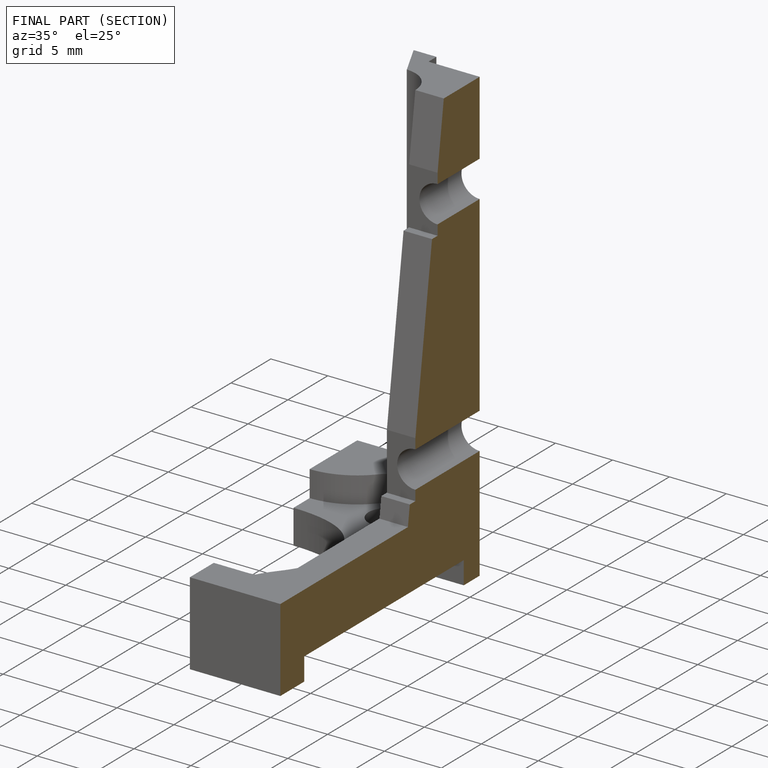
[diagram: finished part — half-section view (interior)]
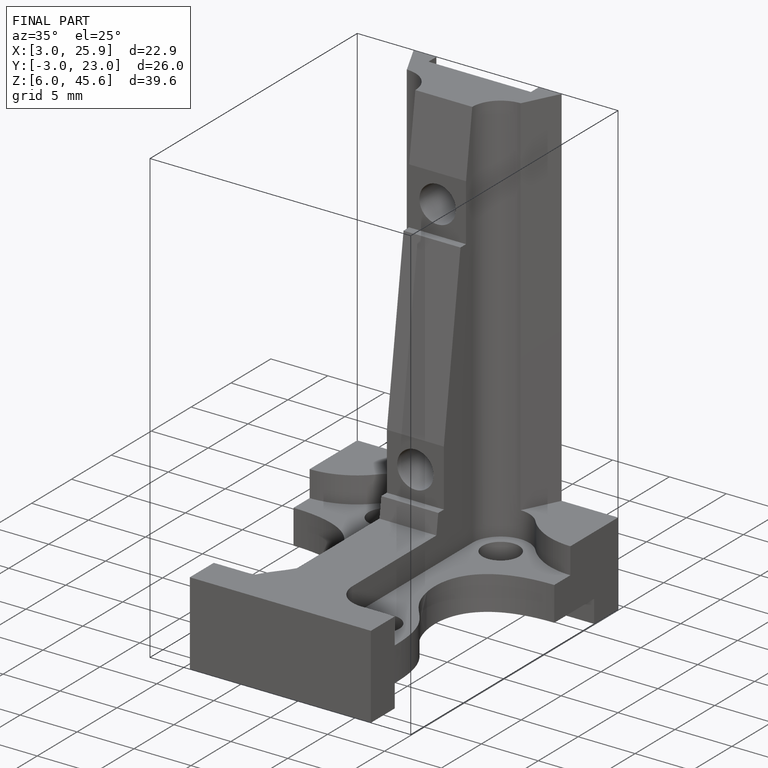
[diagram: finished part — iso view with bounding-box wireframe]
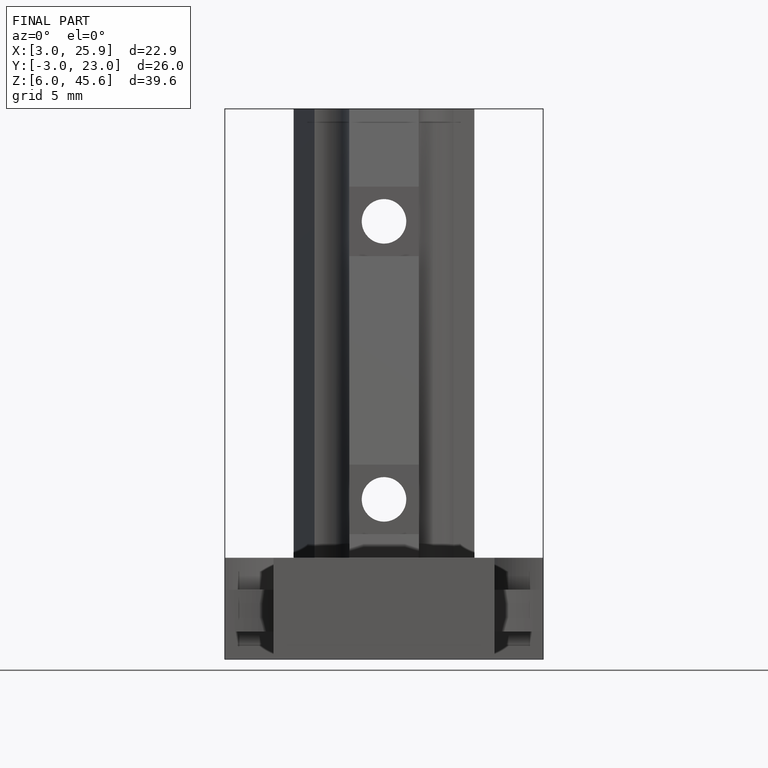
[diagram: finished part — front view with bounding-box wireframe]
